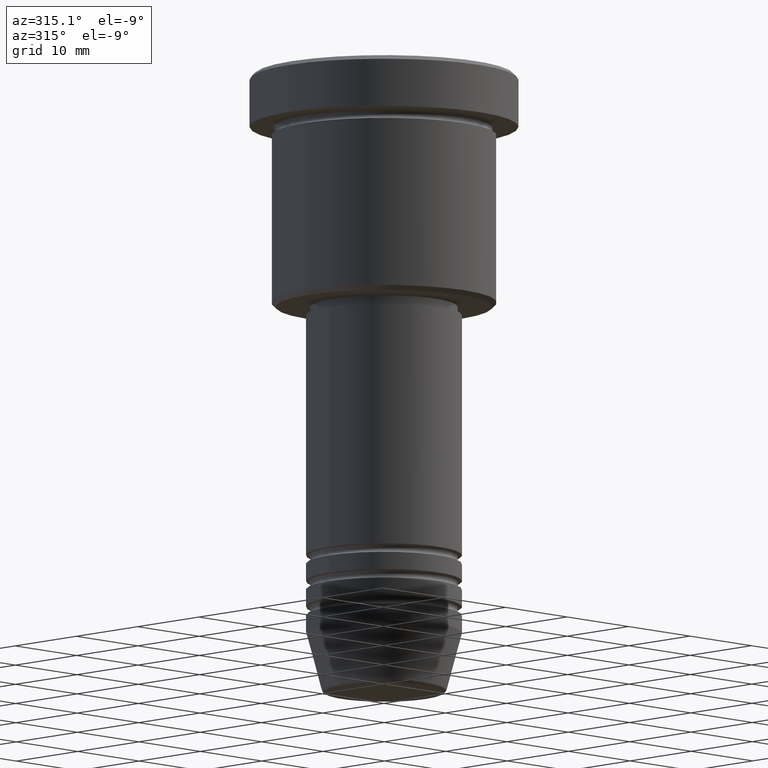
[diagram: clean part render]
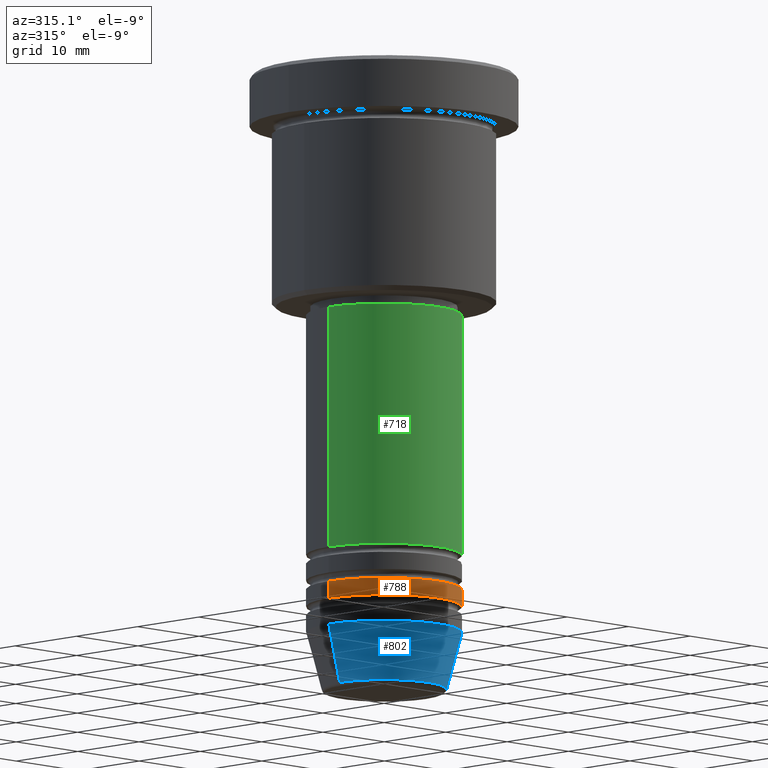
[diagram: same view with three faces highlighted in distinct colors, each labeled with its STEP entity id]
A machine part, auxiliary view with three faces highlighted in distinct colors.
Their STEP definitions:

[orange] entity #788 — the highlighted cylindrical surface (partial cylindrical patch) has radius 9 mm, axis along (-0, -0, 1).
#4 = CARTESIAN_POINT ( 'NONE',  ( 0.000000000000000000, 0.000000000000000000, -59.99999999999998579 ) ) ;
#7 = VERTEX_POINT ( 'NONE', #30 ) ;
#8 = DIRECTION ( 'NONE',  ( 1.000000000000000000, 0.000000000000000000, 0.000000000000000000 ) ) ;
#23 = CARTESIAN_POINT ( 'NONE',  ( -9.000000000000000000, 1.102182119232617714E-15, -61.99999999999998579 ) ) ;
#30 = CARTESIAN_POINT ( 'NONE',  ( 9.000000000000000000, 0.000000000000000000, -61.99999999999998579 ) ) ;
#98 = VERTEX_POINT ( 'NONE', #974 ) ;
#189 = CARTESIAN_POINT ( 'NONE',  ( -9.000000000000000000, 1.102182119232617714E-15, -59.99999999999998579 ) ) ;
#190 = DIRECTION ( 'NONE',  ( -0.000000000000000000, -0.000000000000000000, 1.000000000000000000 ) ) ;
#193 = EDGE_CURVE ( 'NONE', #918, #694, #993, .T. ) ;
#196 = ORIENTED_EDGE ( 'NONE', *, *, #319, .F. ) ;
#201 = DIRECTION ( 'NONE',  ( -0.000000000000000000, -0.000000000000000000, 1.000000000000000000 ) ) ;
#212 = ORIENTED_EDGE ( 'NONE', *, *, #193, .F. ) ;
#269 = FACE_OUTER_BOUND ( 'NONE', #741, .T. ) ;
#271 = VECTOR ( 'NONE', #190, 1000.000000000000000 ) ;
#319 = EDGE_CURVE ( 'NONE', #694, #98, #812, .T. ) ;
#325 = AXIS2_PLACEMENT_3D ( 'NONE', #4, #376, #730 ) ;
#376 = DIRECTION ( 'NONE',  ( -0.000000000000000000, -0.000000000000000000, 1.000000000000000000 ) ) ;
#387 = AXIS2_PLACEMENT_3D ( 'NONE', #939, #827, #8 ) ;
#491 = DIRECTION ( 'NONE',  ( 1.000000000000000000, 0.000000000000000000, 0.000000000000000000 ) ) ;
#507 = DIRECTION ( 'NONE',  ( -0.000000000000000000, -0.000000000000000000, 1.000000000000000000 ) ) ;
#583 = EDGE_CURVE ( 'NONE', #7, #98, #1062, .T. ) ;
#631 = CYLINDRICAL_SURFACE ( 'NONE', #1161, 9.000000000000000000 ) ;
#694 = VERTEX_POINT ( 'NONE', #189 ) ;
#730 = DIRECTION ( 'NONE',  ( 1.000000000000000000, 0.000000000000000000, 0.000000000000000000 ) ) ;
#741 = EDGE_LOOP ( 'NONE', ( #212, #1167, #1146, #196 ) ) ;
#750 = CARTESIAN_POINT ( 'NONE',  ( 0.000000000000000000, 0.000000000000000000, 0.000000000000000000 ) ) ;
#788 = ADVANCED_FACE ( 'NONE', ( #269 ), #631, .T. ) ;
#801 = CARTESIAN_POINT ( 'NONE',  ( -9.000000000000000000, 1.102182119232617714E-15, 0.000000000000000000 ) ) ;
#804 = EDGE_CURVE ( 'NONE', #918, #7, #1105, .T. ) ;
#812 = CIRCLE ( 'NONE', #325, 9.000000000000000000 ) ;
#827 = DIRECTION ( 'NONE',  ( -0.000000000000000000, -0.000000000000000000, 1.000000000000000000 ) ) ;
#918 = VERTEX_POINT ( 'NONE', #23 ) ;
#939 = CARTESIAN_POINT ( 'NONE',  ( 0.000000000000000000, 0.000000000000000000, -61.99999999999998579 ) ) ;
#974 = CARTESIAN_POINT ( 'NONE',  ( 9.000000000000000000, 0.000000000000000000, -59.99999999999998579 ) ) ;
#993 = LINE ( 'NONE', #801, #271 ) ;
#1046 = VECTOR ( 'NONE', #507, 1000.000000000000000 ) ;
#1053 = CARTESIAN_POINT ( 'NONE',  ( 9.000000000000000000, 0.000000000000000000, 0.000000000000000000 ) ) ;
#1062 = LINE ( 'NONE', #1053, #1046 ) ;
#1105 = CIRCLE ( 'NONE', #387, 9.000000000000000000 ) ;
#1146 = ORIENTED_EDGE ( 'NONE', *, *, #583, .T. ) ;
#1161 = AXIS2_PLACEMENT_3D ( 'NONE', #750, #201, #491 ) ;
#1167 = ORIENTED_EDGE ( 'NONE', *, *, #804, .T. ) ;

[blue] entity #802 — the highlighted conical surface has half-angle 15 deg.
#2 = DIRECTION ( 'NONE',  ( -0.2588190451025213501, 3.169619151431772337E-17, 0.9659258262890680902 ) ) ;
#28 = CARTESIAN_POINT ( 'NONE',  ( 0.000000000000000000, 0.000000000000000000, -65.00000000000000000 ) ) ;
#35 = EDGE_CURVE ( 'NONE', #74, #534, #324, .T. ) ;
#70 = VECTOR ( 'NONE', #710, 1000.000000000000000 ) ;
#74 = VERTEX_POINT ( 'NONE', #444 ) ;
#96 = LINE ( 'NONE', #1170, #291 ) ;
#103 = EDGE_CURVE ( 'NONE', #534, #284, #262, .T. ) ;
#130 = CARTESIAN_POINT ( 'NONE',  ( 0.000000000000000000, 0.000000000000000000, -71.62940952255127058 ) ) ;
#186 = CARTESIAN_POINT ( 'NONE',  ( 0.000000000000000000, 0.000000000000000000, -65.00000000000000000 ) ) ;
#199 = ORIENTED_EDGE ( 'NONE', *, *, #35, .T. ) ;
#219 = DIRECTION ( 'NONE',  ( -0.000000000000000000, -0.000000000000000000, 1.000000000000000000 ) ) ;
#225 = DIRECTION ( 'NONE',  ( -0.000000000000000000, -0.000000000000000000, 1.000000000000000000 ) ) ;
#231 = AXIS2_PLACEMENT_3D ( 'NONE', #28, #219, #305 ) ;
#262 = LINE ( 'NONE', #331, #70 ) ;
#268 = EDGE_CURVE ( 'NONE', #488, #284, #386, .T. ) ;
#282 = DIRECTION ( 'NONE',  ( -0.000000000000000000, -0.000000000000000000, 1.000000000000000000 ) ) ;
#284 = VERTEX_POINT ( 'NONE', #633 ) ;
#291 = VECTOR ( 'NONE', #2, 1000.000000000000000 ) ;
#305 = DIRECTION ( 'NONE',  ( 1.000000000000000000, 0.000000000000000000, 0.000000000000000000 ) ) ;
#324 = CIRCLE ( 'NONE', #756, 7.223655072137188604 ) ;
#331 = CARTESIAN_POINT ( 'NONE',  ( 9.000000000000000000, 0.000000000000000000, -65.00000000000000000 ) ) ;
#357 = ORIENTED_EDGE ( 'NONE', *, *, #268, .F. ) ;
#386 = CIRCLE ( 'NONE', #1177, 9.000000000000000000 ) ;
#419 = CARTESIAN_POINT ( 'NONE',  ( 7.223655072137188604, 0.000000000000000000, -71.62940952255127058 ) ) ;
#444 = CARTESIAN_POINT ( 'NONE',  ( -7.223655072137189492, 9.934123627281765110E-16, -71.62940952255127058 ) ) ;
#488 = VERTEX_POINT ( 'NONE', #658 ) ;
#528 = ORIENTED_EDGE ( 'NONE', *, *, #103, .T. ) ;
#534 = VERTEX_POINT ( 'NONE', #419 ) ;
#556 = DIRECTION ( 'NONE',  ( 1.000000000000000000, 0.000000000000000000, 0.000000000000000000 ) ) ;
#633 = CARTESIAN_POINT ( 'NONE',  ( 9.000000000000000000, 0.000000000000000000, -65.00000000000000000 ) ) ;
#658 = CARTESIAN_POINT ( 'NONE',  ( -9.000000000000000000, 1.102182119232617714E-15, -65.00000000000000000 ) ) ;
#710 = DIRECTION ( 'NONE',  ( 0.2588190451025213501, 0.000000000000000000, 0.9659258262890680902 ) ) ;
#755 = EDGE_CURVE ( 'NONE', #74, #488, #96, .T. ) ;
#756 = AXIS2_PLACEMENT_3D ( 'NONE', #130, #225, #1033 ) ;
#802 = ADVANCED_FACE ( 'NONE', ( #1118 ), #1178, .T. ) ;
#922 = EDGE_LOOP ( 'NONE', ( #926, #199, #528, #357 ) ) ;
#926 = ORIENTED_EDGE ( 'NONE', *, *, #755, .F. ) ;
#1033 = DIRECTION ( 'NONE',  ( 1.000000000000000000, 0.000000000000000000, 0.000000000000000000 ) ) ;
#1118 = FACE_OUTER_BOUND ( 'NONE', #922, .T. ) ;
#1170 = CARTESIAN_POINT ( 'NONE',  ( -9.000000000000000000, 1.102182119232617714E-15, -65.00000000000000000 ) ) ;
#1177 = AXIS2_PLACEMENT_3D ( 'NONE', #186, #282, #556 ) ;
#1178 = CONICAL_SURFACE ( 'NONE', #231, 9.000000000000000000, 0.2617993877991500740 ) ;

[green] entity #718 — the highlighted cylindrical surface (partial cylindrical patch) has radius 9 mm, axis along (-0, -0, 1).
#24 = CARTESIAN_POINT ( 'NONE',  ( 9.000000000000000000, 0.000000000000000000, 0.000000000000000000 ) ) ;
#33 = CIRCLE ( 'NONE', #441, 9.000000000000000000 ) ;
#36 = CARTESIAN_POINT ( 'NONE',  ( 0.000000000000000000, 0.000000000000000000, -55.99999999999997868 ) ) ;
#79 = CARTESIAN_POINT ( 'NONE',  ( -9.000000000000000000, 1.102182119232617714E-15, 0.000000000000000000 ) ) ;
#124 = DIRECTION ( 'NONE',  ( -0.000000000000000000, -0.000000000000000000, 1.000000000000000000 ) ) ;
#220 = CARTESIAN_POINT ( 'NONE',  ( -9.000000000000000000, 1.102182119232617714E-15, -28.00000000000000355 ) ) ;
#236 = ORIENTED_EDGE ( 'NONE', *, *, #455, .T. ) ;
#253 = EDGE_CURVE ( 'NONE', #373, #569, #33, .T. ) ;
#316 = DIRECTION ( 'NONE',  ( 1.000000000000000000, 0.000000000000000000, 0.000000000000000000 ) ) ;
#344 = VECTOR ( 'NONE', #124, 1000.000000000000000 ) ;
#353 = EDGE_CURVE ( 'NONE', #380, #373, #808, .T. ) ;
#373 = VERTEX_POINT ( 'NONE', #220 ) ;
#380 = VERTEX_POINT ( 'NONE', #675 ) ;
#394 = EDGE_CURVE ( 'NONE', #1041, #569, #925, .T. ) ;
#400 = ORIENTED_EDGE ( 'NONE', *, *, #353, .F. ) ;
#412 = DIRECTION ( 'NONE',  ( -0.000000000000000000, -0.000000000000000000, 1.000000000000000000 ) ) ;
#431 = CARTESIAN_POINT ( 'NONE',  ( 9.000000000000000000, 0.000000000000000000, -55.99999999999997868 ) ) ;
#441 = AXIS2_PLACEMENT_3D ( 'NONE', #1011, #540, #646 ) ;
#452 = EDGE_LOOP ( 'NONE', ( #400, #236, #543, #1128 ) ) ;
#455 = EDGE_CURVE ( 'NONE', #380, #1041, #866, .T. ) ;
#540 = DIRECTION ( 'NONE',  ( -0.000000000000000000, -0.000000000000000000, 1.000000000000000000 ) ) ;
#543 = ORIENTED_EDGE ( 'NONE', *, *, #394, .T. ) ;
#544 = DIRECTION ( 'NONE',  ( -0.000000000000000000, -0.000000000000000000, 1.000000000000000000 ) ) ;
#569 = VERTEX_POINT ( 'NONE', #955 ) ;
#575 = AXIS2_PLACEMENT_3D ( 'NONE', #726, #544, #1097 ) ;
#592 = VECTOR ( 'NONE', #1036, 1000.000000000000000 ) ;
#623 = CYLINDRICAL_SURFACE ( 'NONE', #575, 9.000000000000000000 ) ;
#645 = AXIS2_PLACEMENT_3D ( 'NONE', #36, #412, #316 ) ;
#646 = DIRECTION ( 'NONE',  ( 1.000000000000000000, 0.000000000000000000, 0.000000000000000000 ) ) ;
#675 = CARTESIAN_POINT ( 'NONE',  ( -9.000000000000000000, 1.102182119232617714E-15, -55.99999999999997868 ) ) ;
#718 = ADVANCED_FACE ( 'NONE', ( #818 ), #623, .T. ) ;
#726 = CARTESIAN_POINT ( 'NONE',  ( 0.000000000000000000, 0.000000000000000000, 0.000000000000000000 ) ) ;
#808 = LINE ( 'NONE', #79, #592 ) ;
#818 = FACE_OUTER_BOUND ( 'NONE', #452, .T. ) ;
#866 = CIRCLE ( 'NONE', #645, 9.000000000000000000 ) ;
#925 = LINE ( 'NONE', #24, #344 ) ;
#955 = CARTESIAN_POINT ( 'NONE',  ( 9.000000000000000000, 0.000000000000000000, -28.00000000000000355 ) ) ;
#1011 = CARTESIAN_POINT ( 'NONE',  ( 0.000000000000000000, 0.000000000000000000, -28.00000000000000355 ) ) ;
#1036 = DIRECTION ( 'NONE',  ( -0.000000000000000000, -0.000000000000000000, 1.000000000000000000 ) ) ;
#1041 = VERTEX_POINT ( 'NONE', #431 ) ;
#1097 = DIRECTION ( 'NONE',  ( 1.000000000000000000, 0.000000000000000000, 0.000000000000000000 ) ) ;
#1128 = ORIENTED_EDGE ( 'NONE', *, *, #253, .F. ) ;